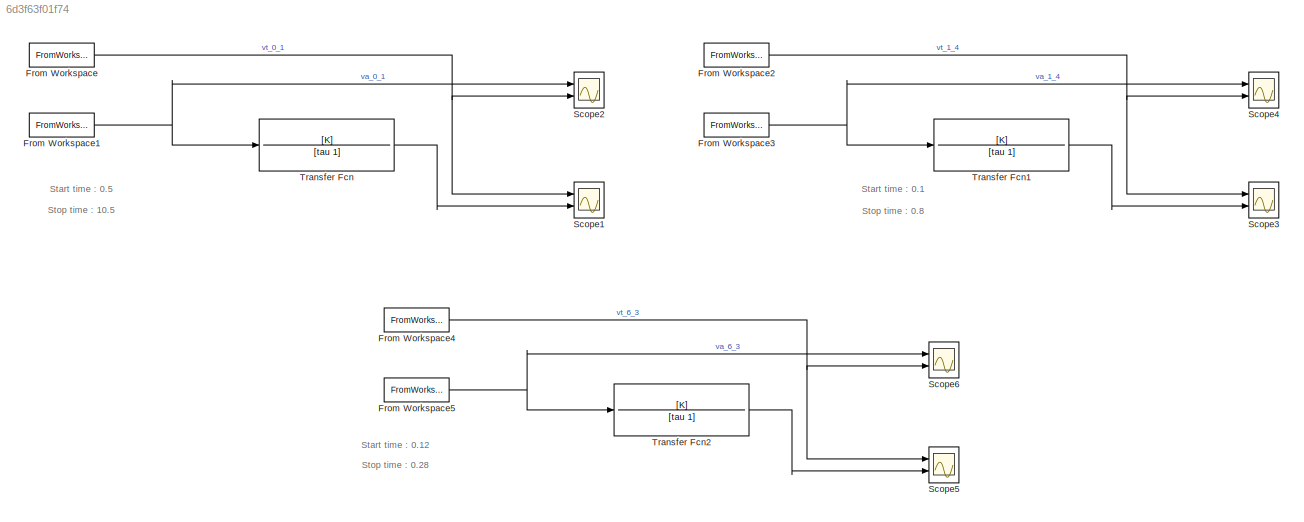
MODEL slx_6d3f63f01f74
KIND model
CONFIG AbsTol = auto
CONFIG EnableMultiTasking = off
CONFIG FixedStep = auto
CONFIG MaxStep = auto
CONFIG MinStep = auto
CONFIG RelTol = 1e-3
CONFIG SampleTimeConstraint = Unconstrained
CONFIG SolverName = ode4
CONFIG StartTime = 0.12
CONFIG StopTime = 0.28
BLOCK [FromWorkspace] From Workspace
  OutDataTypeStr = double
  VariableName = [t(:,1) vt(:,1)]
BLOCK [FromWorkspace] From Workspace1
  OutDataTypeStr = double
  VariableName = [t(:,1) va(:,1)]
BLOCK [FromWorkspace] From Workspace2
  OutDataTypeStr = double
  VariableName = [t(:,2) vt(:,2)]
BLOCK [FromWorkspace] From Workspace3
  OutDataTypeStr = double
  VariableName = [t(:,2) va(:,2)]
BLOCK [FromWorkspace] From Workspace4
  OutDataTypeStr = double
  VariableName = [t(:,3) vt(:,3)]
BLOCK [FromWorkspace] From Workspace5
  OutDataTypeStr = double
  VariableName = [t(:,3) va(:,3)]
BLOCK [Scope] Scope1
  Floating = off
  NumInputPorts = 2
  Ports = [2]
  ScopeSpecificationString = Simulink.scopes.TimeScopeBlockCfg('CurrentConfiguration', extmgr.ConfigurationSet(extmgr.Configuration('Core','General UI',true),extmgr.Configuration('Core','Source UI',true),extmgr.Configuration('Sources','WiredSimulink',true,'SampleTime','0.001'),extmgr.Configuration('Visuals','Time Domain',true,'SerializedDisplays',{struct('MinYLimReal','-5.65515','MaxYLimReal','5.95683','YLabelReal','','MinYLi...<+1529ch>
BLOCK [Scope] Scope2
  Floating = off
  NumInputPorts = 2
  Ports = [2]
  ScopeSpecificationString = Simulink.scopes.TimeScopeBlockCfg('CurrentConfiguration', extmgr.ConfigurationSet(extmgr.Configuration('Core','General UI',true),extmgr.Configuration('Core','Source UI',true),extmgr.Configuration('Sources','WiredSimulink',true,'DataLoggingVariableName','ScopeData3','SampleTime','0.001'),extmgr.Configuration('Visuals','Time Domain',true,'SerializedDisplays',{struct('MinYLimReal','-1.98234','MaxYLim...<+1497ch>
BLOCK [Scope] Scope3
  Floating = off
  NumInputPorts = 2
  Ports = [2]
  ScopeSpecificationString = Simulink.scopes.TimeScopeBlockCfg('CurrentConfiguration', extmgr.ConfigurationSet(extmgr.Configuration('Core','General UI',true),extmgr.Configuration('Core','Source UI',true),extmgr.Configuration('Sources','WiredSimulink',true,'DataLoggingVariableName','ScopeData1','SampleTime','0.0001'),extmgr.Configuration('Visuals','Time Domain',true,'SerializedDisplays',{struct('MinYLimReal','-3.71488','MaxYLi...<+1570ch>
BLOCK [Scope] Scope4
  Floating = off
  NumInputPorts = 2
  Ports = [2]
  ScopeSpecificationString = Simulink.scopes.TimeScopeBlockCfg('CurrentConfiguration', extmgr.ConfigurationSet(extmgr.Configuration('Core','General UI',true),extmgr.Configuration('Core','Source UI',true),extmgr.Configuration('Sources','WiredSimulink',true,'DataLoggingVariableName','ScopeData2','SampleTime','0.0001'),extmgr.Configuration('Visuals','Time Domain',true,'SerializedDisplays',{struct('MinYLimReal','-4.42157','MaxYLi...<+1472ch>
BLOCK [Scope] Scope5
  Floating = off
  NumInputPorts = 2
  Ports = [2]
  ScopeSpecificationString = Simulink.scopes.TimeScopeBlockCfg('CurrentConfiguration', extmgr.ConfigurationSet(extmgr.Configuration('Core','General UI',true),extmgr.Configuration('Core','Source UI',true),extmgr.Configuration('Sources','WiredSimulink',true,'DataLoggingVariableName','ScopeData4','SampleTime','0.0001'),extmgr.Configuration('Visuals','Time Domain',true,'SerializedDisplays',{struct('MinYLimReal','-9.54872','MaxYLi...<+1683ch>
BLOCK [Scope] Scope6
  Floating = off
  NumInputPorts = 2
  Ports = [2]
  ScopeSpecificationString = Simulink.scopes.TimeScopeBlockCfg('CurrentConfiguration', extmgr.ConfigurationSet(extmgr.Configuration('Core','General UI',true),extmgr.Configuration('Core','Source UI',true),extmgr.Configuration('Sources','WiredSimulink',true,'DataLoggingVariableName','ScopeData5','SampleTime','0.0001'),extmgr.Configuration('Visuals','Time Domain',true,'SerializedDisplays',{struct('MinYLimReal','-1142.80652','Max...<+1581ch>
BLOCK [TransferFcn] Transfer Fcn
  Denominator = [tau 1]
  Numerator = [K]
BLOCK [TransferFcn] Transfer Fcn1
  Denominator = [tau 1]
  Numerator = [K]
BLOCK [TransferFcn] Transfer Fcn2
  Denominator = [tau 1]
  Numerator = [K]
ANNOTATION (root): Start time : 0.1
ANNOTATION (root): Start time : 0.12
ANNOTATION (root): Start time : 0.5
ANNOTATION (root): Stop time : 0.28
ANNOTATION (root): Stop time : 0.8
ANNOTATION (root): Stop time : 10.5
NET From Workspace1:1 -> Scope2:1, Transfer Fcn:1
NET From Workspace2:1 -> Scope3:1, Scope4:2
NET From Workspace3:1 -> Scope4:1, Transfer Fcn1:1
NET From Workspace4:1 -> Scope5:1, Scope6:2
NET From Workspace5:1 -> Scope6:1, Transfer Fcn2:1
NET From Workspace:1 -> Scope1:1, Scope2:2
LINE Transfer Fcn1:1 -> Scope3:2
LINE Transfer Fcn2:1 -> Scope5:2
LINE Transfer Fcn:1 -> Scope1:2
note: NET lines group one-source signal fan-out (src -> all destinations, sorted); 1:1 wires keep LINE
